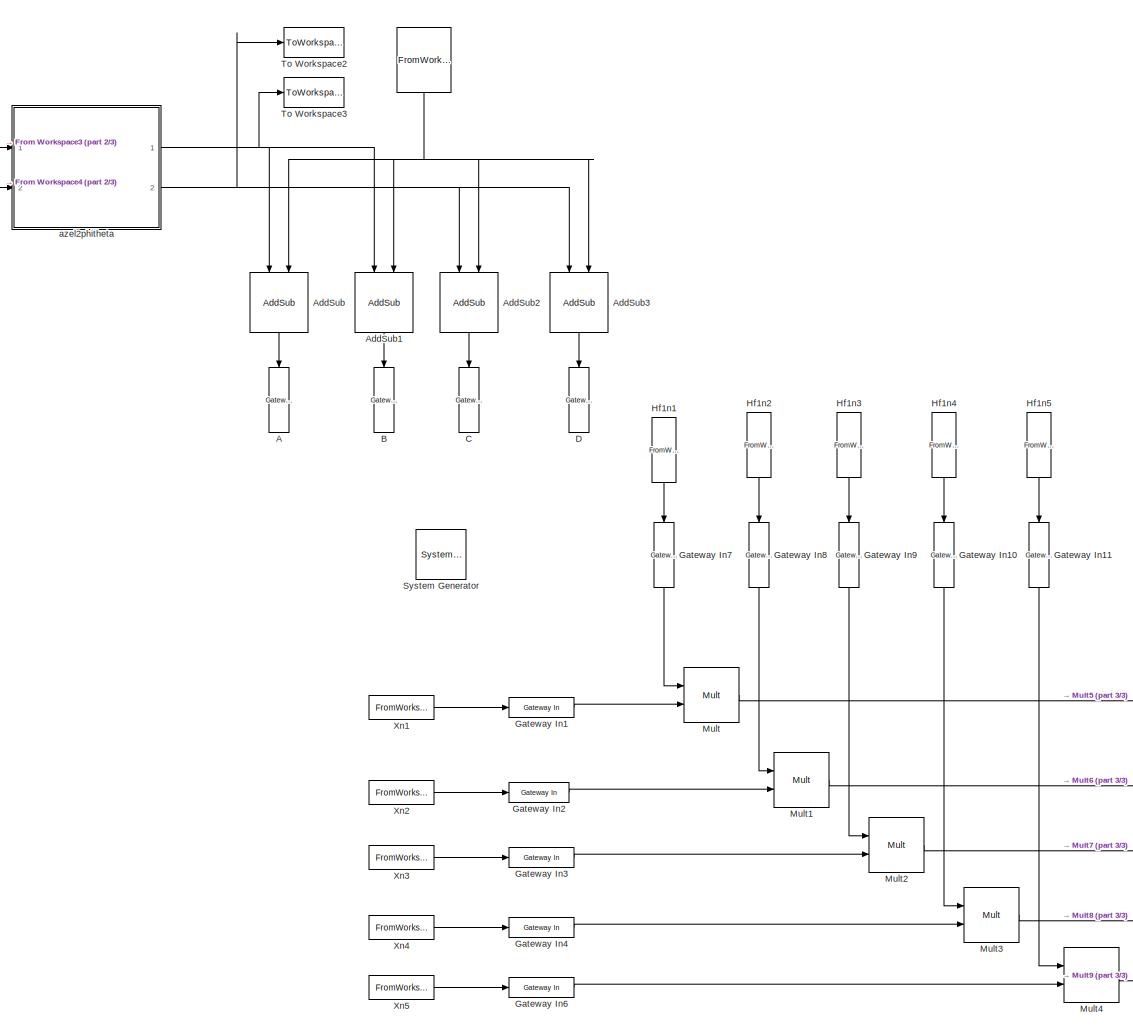
[diagram: root canvas - part 1/3, center side, full height]
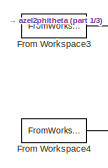
[diagram: root canvas - part 2/3, top left region]
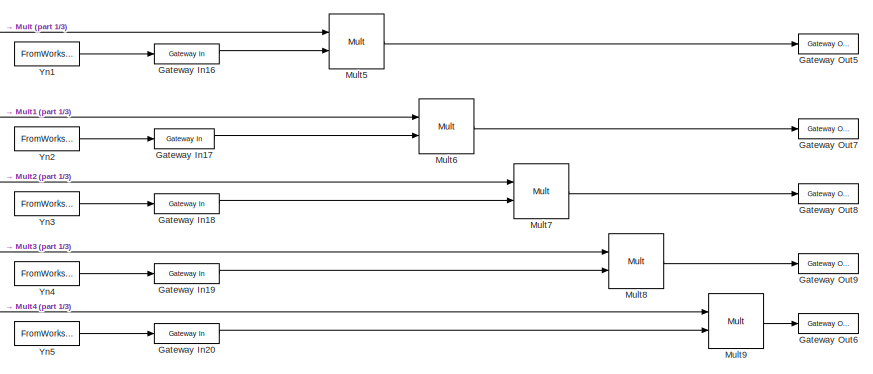
[diagram: root canvas - part 3/3, bottom right region]
MODEL slx_608068588e67
KIND model
CONFIG AbsTol = auto
CONFIG FixedStep = auto
CONFIG MaxStep = auto
CONFIG MinStep = auto
CONFIG RelTol = 1e-3
CONFIG SampleTimeConstraint = Unconstrained
CONFIG Solver = VariableStepAuto
CONFIG SolverMode = Auto
CONFIG SolverName = VariableStepAuto
CONFIG StartTime = 0.0
CONFIG StopTime = 10.0
BLOCK [FromWorkspace]  
  SampleTime = 0
  VariableName = Epsilon
  ZeroCross = on
BLOCK [Reference]  System Generator  REF=xbsIndex_r4/ System Generator
  AttributesFormatString = System\nGenerator
  Ports = []
  SourceBlock = xbsIndex_r4/ System Generator
  SourceType = Xilinx System Generator Block
  Tag = genX
  UserDataPersistent = on
BLOCK [Reference] A  REF=xbsIndex_r4/Gateway In
  Ports = [1, 1]
  SourceBlock = xbsIndex_r4/Gateway In
  SourceType = Xilinx Gateway In Block
BLOCK [Reference] AddSub  REF=xbsIndex_r4/AddSub
  Ports = [2, 1]
  SourceBlock = xbsIndex_r4/AddSub
  SourceType = Xilinx Adder/Subtracter Block
BLOCK [Reference] AddSub1  REF=xbsIndex_r4/AddSub
  Ports = [2, 1]
  SourceBlock = xbsIndex_r4/AddSub
  SourceType = Xilinx Adder/Subtracter Block
BLOCK [Reference] AddSub2  REF=xbsIndex_r4/AddSub
  Ports = [2, 1]
  SourceBlock = xbsIndex_r4/AddSub
  SourceType = Xilinx Adder/Subtracter Block
BLOCK [Reference] AddSub3  REF=xbsIndex_r4/AddSub
  Ports = [2, 1]
  SourceBlock = xbsIndex_r4/AddSub
  SourceType = Xilinx Adder/Subtracter Block
BLOCK [Reference] B  REF=xbsIndex_r4/Gateway In
  Ports = [1, 1]
  SourceBlock = xbsIndex_r4/Gateway In
  SourceType = Xilinx Gateway In Block
BLOCK [Reference] C  REF=xbsIndex_r4/Gateway In
  Ports = [1, 1]
  SourceBlock = xbsIndex_r4/Gateway In
  SourceType = Xilinx Gateway In Block
BLOCK [Reference] D  REF=xbsIndex_r4/Gateway In
  Ports = [1, 1]
  SourceBlock = xbsIndex_r4/Gateway In
  SourceType = Xilinx Gateway In Block
BLOCK [FromWorkspace] From Workspace3
  SampleTime = 0
  VariableName = Elevation
  ZeroCross = on
BLOCK [FromWorkspace] From Workspace4
  SampleTime = 0
  VariableName = Azimuth
  ZeroCross = on
BLOCK [Reference] Gateway In1  REF=xbsIndex_r4/Gateway In
  Ports = [1, 1]
  SourceBlock = xbsIndex_r4/Gateway In
  SourceType = Xilinx Gateway In Block
BLOCK [Reference] Gateway In10  REF=xbsIndex_r4/Gateway In
  Ports = [1, 1]
  SourceBlock = xbsIndex_r4/Gateway In
  SourceType = Xilinx Gateway In Block
BLOCK [Reference] Gateway In11  REF=xbsIndex_r4/Gateway In
  Ports = [1, 1]
  SourceBlock = xbsIndex_r4/Gateway In
  SourceType = Xilinx Gateway In Block
BLOCK [Reference] Gateway In16  REF=xbsIndex_r4/Gateway In
  Ports = [1, 1]
  SourceBlock = xbsIndex_r4/Gateway In
  SourceType = Xilinx Gateway In Block
BLOCK [Reference] Gateway In17  REF=xbsIndex_r4/Gateway In
  Ports = [1, 1]
  SourceBlock = xbsIndex_r4/Gateway In
  SourceType = Xilinx Gateway In Block
BLOCK [Reference] Gateway In18  REF=xbsIndex_r4/Gateway In
  Ports = [1, 1]
  SourceBlock = xbsIndex_r4/Gateway In
  SourceType = Xilinx Gateway In Block
BLOCK [Reference] Gateway In19  REF=xbsIndex_r4/Gateway In
  Ports = [1, 1]
  SourceBlock = xbsIndex_r4/Gateway In
  SourceType = Xilinx Gateway In Block
BLOCK [Reference] Gateway In2  REF=xbsIndex_r4/Gateway In
  Ports = [1, 1]
  SourceBlock = xbsIndex_r4/Gateway In
  SourceType = Xilinx Gateway In Block
BLOCK [Reference] Gateway In20  REF=xbsIndex_r4/Gateway In
  Ports = [1, 1]
  SourceBlock = xbsIndex_r4/Gateway In
  SourceType = Xilinx Gateway In Block
BLOCK [Reference] Gateway In3  REF=xbsIndex_r4/Gateway In
  Ports = [1, 1]
  SourceBlock = xbsIndex_r4/Gateway In
  SourceType = Xilinx Gateway In Block
BLOCK [Reference] Gateway In4  REF=xbsIndex_r4/Gateway In
  Ports = [1, 1]
  SourceBlock = xbsIndex_r4/Gateway In
  SourceType = Xilinx Gateway In Block
BLOCK [Reference] Gateway In6  REF=xbsIndex_r4/Gateway In
  Ports = [1, 1]
  SourceBlock = xbsIndex_r4/Gateway In
  SourceType = Xilinx Gateway In Block
BLOCK [Reference] Gateway In7  REF=xbsIndex_r4/Gateway In
  Ports = [1, 1]
  SourceBlock = xbsIndex_r4/Gateway In
  SourceType = Xilinx Gateway In Block
BLOCK [Reference] Gateway In8  REF=xbsIndex_r4/Gateway In
  Ports = [1, 1]
  SourceBlock = xbsIndex_r4/Gateway In
  SourceType = Xilinx Gateway In Block
BLOCK [Reference] Gateway In9  REF=xbsIndex_r4/Gateway In
  Ports = [1, 1]
  SourceBlock = xbsIndex_r4/Gateway In
  SourceType = Xilinx Gateway In Block
BLOCK [Reference] Gateway Out5  REF=xbsIndex_r4/Gateway Out
  Ports = [1, 1]
  SourceBlock = xbsIndex_r4/Gateway Out
  SourceType = Xilinx Gateway Out Block
BLOCK [Reference] Gateway Out6  REF=xbsIndex_r4/Gateway Out
  Ports = [1, 1]
  SourceBlock = xbsIndex_r4/Gateway Out
  SourceType = Xilinx Gateway Out Block
BLOCK [Reference] Gateway Out7  REF=xbsIndex_r4/Gateway Out
  Ports = [1, 1]
  SourceBlock = xbsIndex_r4/Gateway Out
  SourceType = Xilinx Gateway Out Block
BLOCK [Reference] Gateway Out8  REF=xbsIndex_r4/Gateway Out
  Ports = [1, 1]
  SourceBlock = xbsIndex_r4/Gateway Out
  SourceType = Xilinx Gateway Out Block
BLOCK [Reference] Gateway Out9  REF=xbsIndex_r4/Gateway Out
  Ports = [1, 1]
  SourceBlock = xbsIndex_r4/Gateway Out
  SourceType = Xilinx Gateway Out Block
BLOCK [FromWorkspace] Hf1n1
  SampleTime = 0
  VariableName = simin
  ZeroCross = on
BLOCK [FromWorkspace] Hf1n2
  SampleTime = 0
  VariableName = simin
  ZeroCross = on
BLOCK [FromWorkspace] Hf1n3
  SampleTime = 0
  VariableName = simin
  ZeroCross = on
BLOCK [FromWorkspace] Hf1n4
  SampleTime = 0
  VariableName = simin
  ZeroCross = on
BLOCK [FromWorkspace] Hf1n5
  SampleTime = 0
  VariableName = Time
  ZeroCross = on
BLOCK [Reference] Mult  REF=xbsIndex_r4/Mult
  Ports = [2, 1]
  SourceBlock = xbsIndex_r4/Mult
  SourceType = Xilinx Multiplier Block
BLOCK [Reference] Mult1  REF=xbsIndex_r4/Mult
  Ports = [2, 1]
  SourceBlock = xbsIndex_r4/Mult
  SourceType = Xilinx Multiplier Block
BLOCK [Reference] Mult2  REF=xbsIndex_r4/Mult
  Ports = [2, 1]
  SourceBlock = xbsIndex_r4/Mult
  SourceType = Xilinx Multiplier Block
BLOCK [Reference] Mult3  REF=xbsIndex_r4/Mult
  Ports = [2, 1]
  SourceBlock = xbsIndex_r4/Mult
  SourceType = Xilinx Multiplier Block
BLOCK [Reference] Mult4  REF=xbsIndex_r4/Mult
  Ports = [2, 1]
  SourceBlock = xbsIndex_r4/Mult
  SourceType = Xilinx Multiplier Block
BLOCK [Reference] Mult5  REF=xbsIndex_r4/Mult
  Ports = [2, 1]
  SourceBlock = xbsIndex_r4/Mult
  SourceType = Xilinx Multiplier Block
BLOCK [Reference] Mult6  REF=xbsIndex_r4/Mult
  Ports = [2, 1]
  SourceBlock = xbsIndex_r4/Mult
  SourceType = Xilinx Multiplier Block
BLOCK [Reference] Mult7  REF=xbsIndex_r4/Mult
  Ports = [2, 1]
  SourceBlock = xbsIndex_r4/Mult
  SourceType = Xilinx Multiplier Block
BLOCK [Reference] Mult8  REF=xbsIndex_r4/Mult
  Ports = [2, 1]
  SourceBlock = xbsIndex_r4/Mult
  SourceType = Xilinx Multiplier Block
BLOCK [Reference] Mult9  REF=xbsIndex_r4/Mult
  Ports = [2, 1]
  SourceBlock = xbsIndex_r4/Mult
  SourceType = Xilinx Multiplier Block
BLOCK [ToWorkspace] To Workspace2
  FixptAsFi = on
  MaxDataPoints = inf
  Ports = [1]
  SampleTime = -1
  Save2DSignal = 3-D array (concatenate along third dimension)
  SaveFormat = Timeseries
  VariableName = Theta
BLOCK [ToWorkspace] To Workspace3
  FixptAsFi = on
  MaxDataPoints = inf
  Ports = [1]
  SampleTime = -1
  Save2DSignal = 3-D array (concatenate along third dimension)
  SaveFormat = Timeseries
  VariableName = Phi
BLOCK [FromWorkspace] Xn1 
  SampleTime = 0
  VariableName = simin
  ZeroCross = on
BLOCK [FromWorkspace] Xn2
  SampleTime = 0
  VariableName = simin
  ZeroCross = on
BLOCK [FromWorkspace] Xn3 
  SampleTime = 0
  VariableName = simin
  ZeroCross = on
BLOCK [FromWorkspace] Xn4 
  SampleTime = 0
  VariableName = simin
  ZeroCross = on
BLOCK [FromWorkspace] Xn5
  SampleTime = 0
  VariableName = Time
  ZeroCross = on
BLOCK [FromWorkspace] Yn1
  SampleTime = 0
  VariableName = simin
  ZeroCross = on
BLOCK [FromWorkspace] Yn2
  SampleTime = 0
  VariableName = simin
  ZeroCross = on
BLOCK [FromWorkspace] Yn3
  SampleTime = 0
  VariableName = simin
  ZeroCross = on
BLOCK [FromWorkspace] Yn4
  SampleTime = 0
  VariableName = simin
  ZeroCross = on
BLOCK [FromWorkspace] Yn5
  SampleTime = 0
  VariableName = Time
  ZeroCross = on
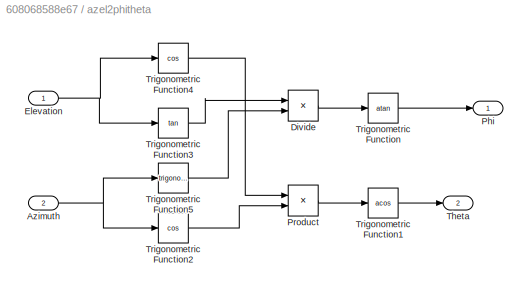
BLOCK [SubSystem] azel2phitheta 
  Ports = [2, 2]
  RequestExecContextInheritance = off
  Variant = off
BLOCK [Inport] azel2phitheta /Azimuth
  IconDisplay = Port number
  Port = 2
BLOCK [Product] azel2phitheta /Divide
  InputSameDT = off
  Inputs = */
  OutDataTypeStr = Inherit: Inherit via internal rule
  Ports = [2, 1]
  RndMeth = Floor
  SaturateOnIntegerOverflow = off
BLOCK [Inport] azel2phitheta /Elevation
  IconDisplay = Port number
BLOCK [Outport] azel2phitheta /Phi
  IconDisplay = Port number
BLOCK [Product] azel2phitheta /Product
  InputSameDT = off
  OutDataTypeStr = Inherit: Inherit via internal rule
  Ports = [2, 1]
  RndMeth = Floor
  SaturateOnIntegerOverflow = off
BLOCK [Outport] azel2phitheta /Theta 
  IconDisplay = Port number
  Port = 2
BLOCK [Trigonometry] azel2phitheta /Trigonometric Function
  Operator = atan
  Ports = [1, 1]
BLOCK [Trigonometry] azel2phitheta /Trigonometric Function1
  Operator = acos
  Ports = [1, 1]
BLOCK [Trigonometry] azel2phitheta /Trigonometric Function2
  Operator = cos
  Ports = [1, 1]
BLOCK [Trigonometry] azel2phitheta /Trigonometric Function3
  Operator = tan
  Ports = [1, 1]
BLOCK [Trigonometry] azel2phitheta /Trigonometric Function4
  Operator = cos
  Ports = [1, 1]
BLOCK [Trigonometry] azel2phitheta /Trigonometric Function5
  Ports = [1, 1]
NET  :1 -> AddSub1:2, AddSub2:2, AddSub3:2, AddSub:2
LINE AddSub1:1 -> B:1
LINE AddSub2:1 -> C:1
LINE AddSub3:1 -> D:1
LINE AddSub:1 -> A:1
LINE From Workspace3:1 -> azel2phitheta :1
LINE From Workspace4:1 -> azel2phitheta :2
LINE Gateway In10:1 -> Mult3:1
LINE Gateway In11:1 -> Mult4:1
LINE Gateway In16:1 -> Mult5:2
LINE Gateway In17:1 -> Mult6:2
LINE Gateway In18:1 -> Mult7:2
LINE Gateway In19:1 -> Mult8:2
LINE Gateway In1:1 -> Mult:2
LINE Gateway In20:1 -> Mult9:2
LINE Gateway In2:1 -> Mult1:2
LINE Gateway In3:1 -> Mult2:2
LINE Gateway In4:1 -> Mult3:2
LINE Gateway In6:1 -> Mult4:2
LINE Gateway In7:1 -> Mult:1
LINE Gateway In8:1 -> Mult1:1
LINE Gateway In9:1 -> Mult2:1
LINE Hf1n1:1 -> Gateway In7:1
LINE Hf1n2:1 -> Gateway In8:1
LINE Hf1n3:1 -> Gateway In9:1
LINE Hf1n4:1 -> Gateway In10:1
LINE Hf1n5:1 -> Gateway In11:1
LINE Mult1:1 -> Mult6:1
LINE Mult2:1 -> Mult7:1
LINE Mult3:1 -> Mult8:1
LINE Mult4:1 -> Mult9:1
LINE Mult5:1 -> Gateway Out5:1
LINE Mult6:1 -> Gateway Out7:1
LINE Mult7:1 -> Gateway Out8:1
LINE Mult8:1 -> Gateway Out9:1
LINE Mult9:1 -> Gateway Out6:1
LINE Mult:1 -> Mult5:1
LINE Xn1 :1 -> Gateway In1:1
LINE Xn2:1 -> Gateway In2:1
LINE Xn3 :1 -> Gateway In3:1
LINE Xn4 :1 -> Gateway In4:1
LINE Xn5:1 -> Gateway In6:1
LINE Yn1:1 -> Gateway In16:1
LINE Yn2:1 -> Gateway In17:1
LINE Yn3:1 -> Gateway In18:1
LINE Yn4:1 -> Gateway In19:1
LINE Yn5:1 -> Gateway In20:1
NET azel2phitheta /Azimuth:1 -> azel2phitheta /Trigonometric Function2:1, azel2phitheta /Trigonometric Function5:1
LINE azel2phitheta /Divide:1 -> azel2phitheta /Trigonometric Function:1
NET azel2phitheta /Elevation:1 -> azel2phitheta /Trigonometric Function3:1, azel2phitheta /Trigonometric Function4:1
LINE azel2phitheta /Product:1 -> azel2phitheta /Trigonometric Function1:1
LINE azel2phitheta /Trigonometric Function1:1 -> azel2phitheta /Theta :1
LINE azel2phitheta /Trigonometric Function2:1 -> azel2phitheta /Product:2
LINE azel2phitheta /Trigonometric Function3:1 -> azel2phitheta /Divide:1
LINE azel2phitheta /Trigonometric Function4:1 -> azel2phitheta /Product:1
LINE azel2phitheta /Trigonometric Function5:1 -> azel2phitheta /Divide:2
LINE azel2phitheta /Trigonometric Function:1 -> azel2phitheta /Phi:1
NET azel2phitheta :1 -> AddSub1:1, AddSub:1, To Workspace3:1
NET azel2phitheta :2 -> AddSub2:1, AddSub3:1, To Workspace2:1
note: NET lines group one-source signal fan-out (src -> all destinations, sorted); 1:1 wires keep LINE
